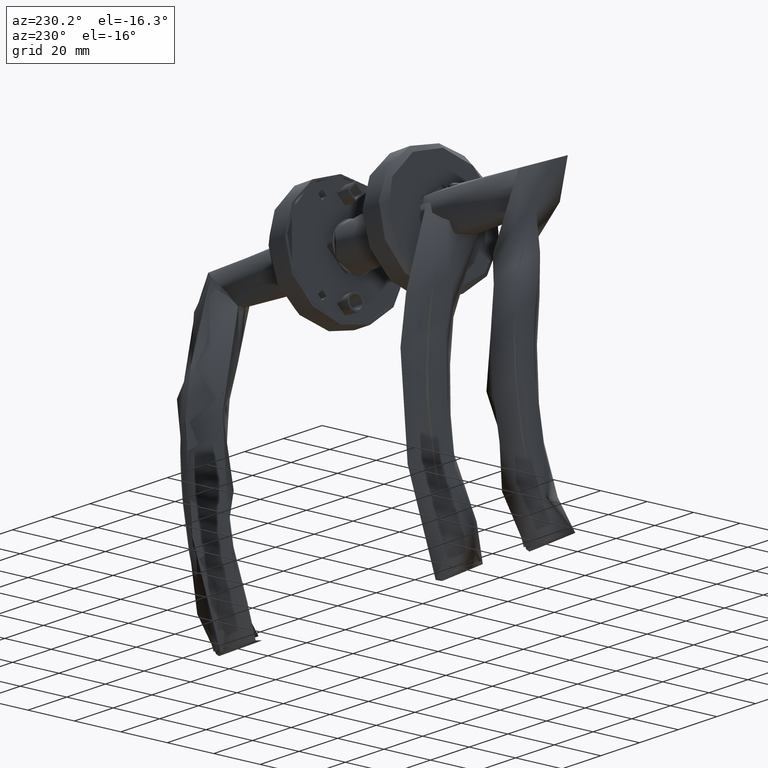
[diagram: clean part render]
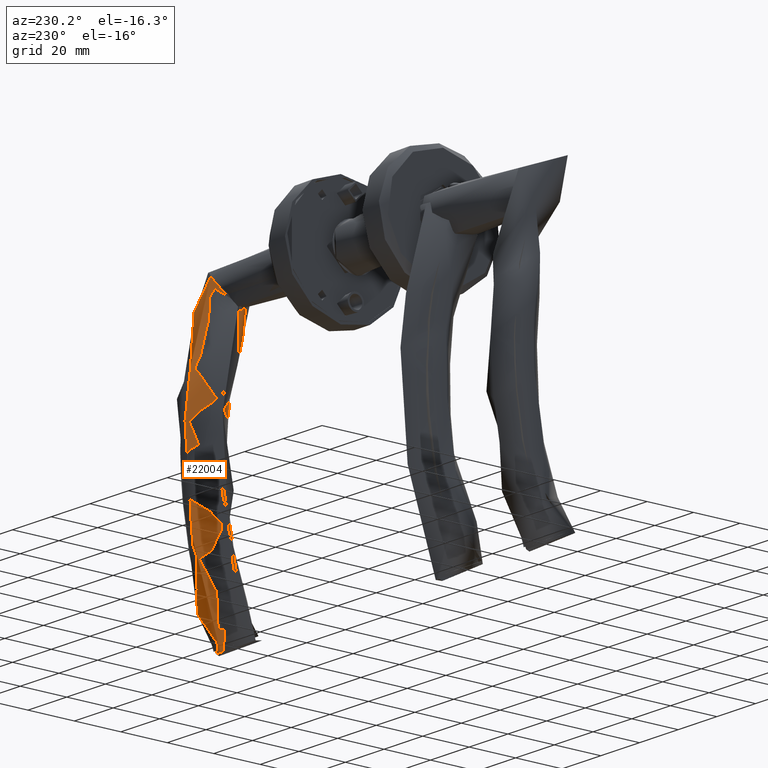
[diagram: same view with one face highlighted and labeled with its STEP entity id]
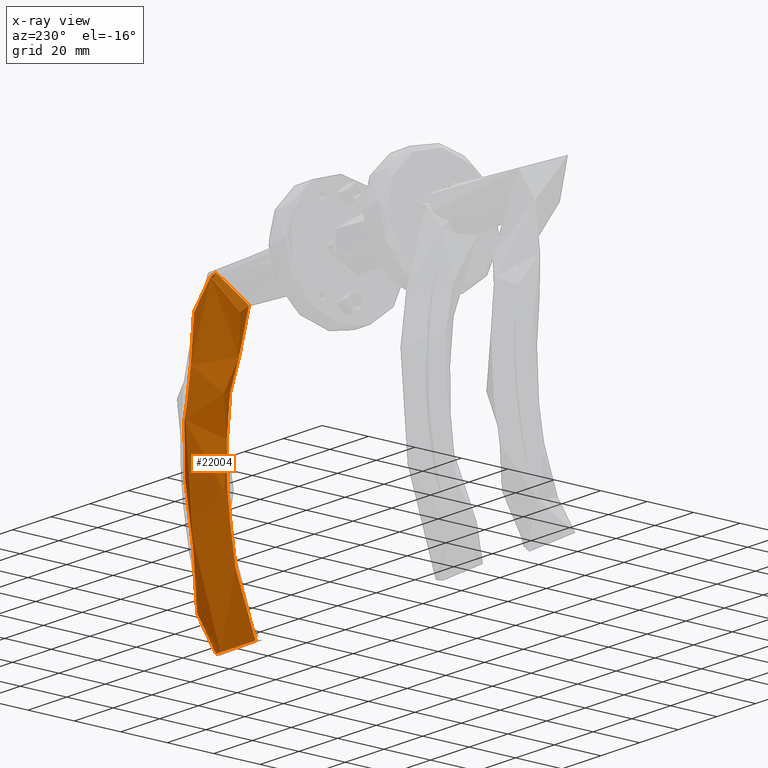
[diagram: x-ray of the same camera — body ghosted, the highlighted face saturated]
A machine part, auxiliary view. The second image highlights one B-rep face of the part: STEP entity #22004.
The next image is the same camera in x-ray: the body ghosted, the highlighted face saturated — about 0% of this face is hidden behind the body in this view.
In plain terms, the highlighted face is a freeform B-spline surface patch.
Its self-contained STEP definition (entity closure, byte-faithful):
#50 = CARTESIAN_POINT ( 'NONE',  ( -16.22071942260672400, 8.234556544962071500, -56.71931508122803900 ) ) ;
#336 = CARTESIAN_POINT ( 'NONE',  ( -16.79419942768651500, 7.850796684820851500, -56.40686338715776300 ) ) ;
#864 = CARTESIAN_POINT ( 'NONE',  ( -13.42798472969003900, -9.103720492256769600, -65.77151898276601100 ) ) ;
#1367 = CARTESIAN_POINT ( 'NONE',  ( -7.617751968627470800, 9.553941256338704900, -63.13283780220581300 ) ) ;
#1399 = CARTESIAN_POINT ( 'NONE',  ( -128.6743231049544500, -11.49598416964240100, -69.55529002845783300 ) ) ;
#1688 = CARTESIAN_POINT ( 'NONE',  ( -131.7640808220501200, -4.598706806350189200, -74.94325840087366000 ) ) ;
#1976 = CARTESIAN_POINT ( 'NONE',  ( -128.4774460883169500, -11.93291999693389400, -68.35405575468219300 ) ) ;
#2256 = CARTESIAN_POINT ( 'NONE',  ( -134.9954863378510200, 2.472336319264605700, -72.58948050646546300 ) ) ;
#2533 = CARTESIAN_POINT ( 'NONE',  ( -133.9716314361016900, 0.2578851161913269200, -74.12972600733131400 ) ) ;
#2738 = CARTESIAN_POINT ( 'NONE',  ( -132.4985005095418600, 17.81445368964994800, -75.00235294117646800 ) ) ;
#3015 = CARTESIAN_POINT ( 'NONE',  ( -133.2421038062283900, -3.759944636678175900, -55.40235294117648800 ) ) ;
#3863 = CARTESIAN_POINT ( 'NONE',  ( -4.735051580258198300, 16.81355099869568900, -75.00235294117648300 ) ) ;
#3886 = ORIENTED_EDGE ( 'NONE', *, *, #18175, .F. ) ;
#3957 = CARTESIAN_POINT ( 'NONE',  ( -135.6283203479031600, 3.704800102703756300, -59.19453161038819600 ) ) ;
#4033 = CARTESIAN_POINT ( 'NONE',  ( -20.05172098690205100, 3.441292553810101100, -55.45171509219385100 ) ) ;
#4412 = CARTESIAN_POINT ( 'NONE',  ( -2.048817750090004400, 5.309291301753273000, -70.59354467984856300 ) ) ;
#4694 = CARTESIAN_POINT ( 'NONE',  ( -0.9044976660930377200, 1.639342160825658900, -73.41711819498532100 ) ) ;
#4699 = CARTESIAN_POINT ( 'NONE',  ( -82.12983448072478200, 31.13336936922119900, -55.40235294117632500 ) ) ;
#4994 = CARTESIAN_POINT ( 'NONE',  ( -0.8592531995585207500, 0.9321315283208147000, -73.79106484013168200 ) ) ;
#5287 = CARTESIAN_POINT ( 'NONE',  ( -3.938468690096986100, -6.801227872048196200, -74.31845336490920300 ) ) ;
#6761 = CARTESIAN_POINT ( 'NONE',  ( -17.62111982056760700, 7.180037014613192000, -55.99843802810929100 ) ) ;
#8089 = CARTESIAN_POINT ( 'NONE',  ( -128.3881004109339300, -12.09070653798450400, -62.63475604416475300 ) ) ;
#8378 = CARTESIAN_POINT ( 'NONE',  ( -135.7212663703287800, 4.017109029182488000, -70.66344605710600000 ) ) ;
#8673 = CARTESIAN_POINT ( 'NONE',  ( -128.5224843459809600, -11.83321044039563000, -68.66104074409599900 ) ) ;
#8970 = CARTESIAN_POINT ( 'NONE',  ( -129.8243343892858900, -8.841579039338970600, -57.39732701362308400 ) ) ;
#9266 = CARTESIAN_POINT ( 'NONE',  ( -133.3453579272024000, -1.110008241925102300, -74.68332276093622100 ) ) ;
#9457 = CARTESIAN_POINT ( 'NONE',  ( -33.99929133140997100, 30.42080222750221800, -75.00235294117612700 ) ) ;
#9920 = CARTESIAN_POINT ( 'NONE',  ( -20.47579451412535100, 1.241879158761763900, -55.95142486578770000 ) ) ;
#10295 = CARTESIAN_POINT ( 'NONE',  ( -12.98929798183592000, -9.265618871486324800, -66.29222607443010400 ) ) ;
#10299 = CARTESIAN_POINT ( 'NONE',  ( -101.4842428337175300, -11.25170264496669700, -75.00235294117635500 ) ) ;
#10577 = CARTESIAN_POINT ( 'NONE',  ( -109.8343842349904400, 26.75985017460723400, -75.00235294117646800 ) ) ;
#10668 = CARTESIAN_POINT ( 'NONE',  ( -136.2152770950185100, 4.969424342609026500, -61.72549823149250200 ) ) ;
#10758 = CARTESIAN_POINT ( 'NONE',  ( -20.08784866817502000, -2.145874518139417200, -57.59081847345371600 ) ) ;
#11149 = CARTESIAN_POINT ( 'NONE',  ( -3.028451348241437000, 6.747217176886635100, -68.97131119212360800 ) ) ;
#11444 = CARTESIAN_POINT ( 'NONE',  ( -1.915171523268339700, -3.927464100632918100, -75.00964802363262200 ) ) ;
#11735 = CARTESIAN_POINT ( 'NONE',  ( -5.119639690218410700, 8.547444420968936600, -66.08681799436519100 ) ) ;
#12039 = CARTESIAN_POINT ( 'NONE',  ( -1.122117694619100000, -1.678837787156855800, -74.74932274921516800 ) ) ;
#12045 = CARTESIAN_POINT ( 'NONE',  ( -109.6647287839631300, 5.839933969572142800, -55.40235294117648100 ) ) ;
#13538 = CARTESIAN_POINT ( 'NONE',  ( -19.06345419602423200, 5.492692037669700200, -55.47420905748829500 ) ) ;
#14326 = VERTEX_POINT ( 'NONE', #1367 ) ;
#14882 = CARTESIAN_POINT ( 'NONE',  ( -128.4634784429618700, -11.91576714853955500, -62.02240624930206500 ) ) ;
#15182 = CARTESIAN_POINT ( 'NONE',  ( -129.2444741785679400, -10.13979406339083400, -58.71156491343961600 ) ) ;
#15474 = CARTESIAN_POINT ( 'NONE',  ( -132.0264922088650200, -4.017222857011407900, -75.00370804705190200 ) ) ;
#15781 = CARTESIAN_POINT ( 'NONE',  ( -129.0890416444910900, -10.56933653190583300, -71.18682825621662900 ) ) ;
#16055 = CARTESIAN_POINT ( 'NONE',  ( -136.0593919882591900, 4.725112415010879200, -69.25901297678666400 ) ) ;
#16536 = CARTESIAN_POINT ( 'NONE',  ( -80.32224485699082100, -8.176454778600296800, -55.40235294117674400 ) ) ;
#16911 = CARTESIAN_POINT ( 'NONE',  ( -134.8506391608407300, 2.046248783081453700, -57.40208389304918100 ) ) ;
#17277 = CARTESIAN_POINT ( 'NONE',  ( -18.89328097642261300, -4.666849316549724200, -59.56225731191602100 ) ) ;
#17842 = CARTESIAN_POINT ( 'NONE',  ( -20.47889096722402900, -0.1726168147073938200, -56.49797674121334300 ) ) ;
#17939 = CARTESIAN_POINT ( 'NONE',  ( -3.176389477336746500, -5.940176044431171800, -74.68440737543848200 ) ) ;
#18175 = EDGE_CURVE ( 'NONE', #14326, #49018, #22716, .T. ) ;
#18225 = CARTESIAN_POINT ( 'NONE',  ( -3.804822952021525800, 7.555168673674180500, -67.83788691446267200 ) ) ;
#18524 = CARTESIAN_POINT ( 'NONE',  ( -2.288981869149924600, -4.634064451229305900, -74.96560506584781100 ) ) ;
#18814 = CARTESIAN_POINT ( 'NONE',  ( -1.296645043736012000, 3.611534631761692500, -72.11563046161757000 ) ) ;
#18820 = CARTESIAN_POINT ( 'NONE',  ( -23.22749961979524600, 22.86034652784522000, -55.40235294117650300 ) ) ;
#19120 = CARTESIAN_POINT ( 'NONE',  ( -7.354237453421859500, 9.489354097761650000, -63.42765605789998800 ) ) ;
#20320 = CARTESIAN_POINT ( 'NONE',  ( -15.33063645719089900, 8.724700936545646700, -57.24227361397603200 ) ) ;
#21675 = CARTESIAN_POINT ( 'NONE',  ( -128.7914884966313300, -11.16498206759597700, -60.28098870768052100 ) ) ;
#21967 = CARTESIAN_POINT ( 'NONE',  ( -129.6164956852199200, -9.305517835078369200, -57.80921056635153800 ) ) ;
#22004 = ADVANCED_FACE ( 'NONE', ( #34050, #78093 ), #60938, .F. ) ;
#22243 = CARTESIAN_POINT ( 'NONE',  ( -134.4490024273230500, 1.294148140485600800, -73.52363009002301900 ) ) ;
#22542 = CARTESIAN_POINT ( 'NONE',  ( -132.5854345574402900, -2.797495497615442700, -55.40136624985294100 ) ) ;
#22716 = B_SPLINE_CURVE_WITH_KNOTS ( 'NONE', 3,
 ( #39981, #53439, #47276, #67249, #40266, #33830, #33544, #27076, #80421, #73987, #20320, #60507, #50, #336, #46991, #6761, #53730, #80705, #40567, #13538, #57465, #63685, #50693, #4033, #38110, #37256, #44828, #9920, #78269, #17842, #64215, #10758, #37822, #43969, #84729, #44528, #17277, #24619, #64504, #84144, #23500, #24323, #70945, #56910 ),
 .UNSPECIFIED., .F., .F.,
 ( 4, 2, 2, 2, 2, 2, 2, 2, 2, 2, 2, 2, 2, 2, 2, 2, 2, 2, 2, 2, 2, 4 ),
 ( -2.094127679499287600E-005, 0.002268244175610261600, 0.004557429628015515500, 0.006846615080420769300, 0.009135800532826024100, 0.01028039325902865000, 0.01142498598523127400, 0.01256957871143389600, 0.01371417143763652000, 0.01485876416383914200, 0.01600335689004176600, 0.01714794961624438800, 0.01829254234244701000, 0.01943713506864963200, 0.02058172779485225500, 0.02287091324725751300, 0.02516009869966276400, 0.02630469142586540000, 0.02744928415206802600, 0.02973846960447327700, 0.03202765505687853200, 0.03660602596168904100 ),
 .UNSPECIFIED. ) ;
#22838 = CARTESIAN_POINT ( 'NONE',  ( -132.4225727516298200, -3.141611520689083600, -75.00164117434826500 ) ) ;
#23035 = CARTESIAN_POINT ( 'NONE',  ( -20.60025059954466200, -16.44265629515970400, -75.00235294117648300 ) ) ;
#23315 = CARTESIAN_POINT ( 'NONE',  ( -30.79152216849348300, 7.359433351636871700, -55.40235294117650300 ) ) ;
#23500 = CARTESIAN_POINT ( 'NONE',  ( -16.79778359064243900, -7.082332482371572100, -62.22796482466574000 ) ) ;
#23690 = CARTESIAN_POINT ( 'NONE',  ( -134.3968202594622000, 1.079514517564542600, -56.67821336361422600 ) ) ;
#23876 = CARTESIAN_POINT ( 'NONE',  ( -40.53682362918795000, -10.20041487859616300, -75.00235294117692300 ) ) ;
#24241 = CARTESIAN_POINT ( 'NONE',  ( -135.0636900413138300, 2.500157776951772900, -57.80952439052224200 ) ) ;
#24323 = CARTESIAN_POINT ( 'NONE',  ( -15.45538475231386500, -8.128540072977580500, -63.73559103894857700 ) ) ;
#24430 = CARTESIAN_POINT ( 'NONE',  ( -12.41325902088857600, -9.434547332067957400, -66.95573374601522700 ) ) ;
#24619 = CARTESIAN_POINT ( 'NONE',  ( -18.39125158037293400, -5.402400699559446900, -60.26326300112616300 ) ) ;
#24719 = CARTESIAN_POINT ( 'NONE',  ( -7.288841593424190400, 9.471786022058847000, -63.50142642018275300 ) ) ;
#25015 = CARTESIAN_POINT ( 'NONE',  ( -10.81431371715268400, -9.676027681564885800, -68.69167044468979100 ) ) ;
#25308 = CARTESIAN_POINT ( 'NONE',  ( -18.67764705882351400, 4.150588235294111300, -55.40235294117647400 ) ) ;
#25602 = CARTESIAN_POINT ( 'NONE',  ( -1.041583594760357600, -1.297965377467117800, -74.65127649162231200 ) ) ;
#26972 = CARTESIAN_POINT ( 'NONE',  ( -136.4580231653124500, 5.531964618879897900, -65.85156883011551100 ) ) ;
#27076 = CARTESIAN_POINT ( 'NONE',  ( -13.51366660752965200, 9.427665132654791300, -58.41976106357006400 ) ) ;
#28425 = CARTESIAN_POINT ( 'NONE',  ( -130.9915195138172200, -6.316064360416846500, -74.49392231153983300 ) ) ;
#28730 = CARTESIAN_POINT ( 'NONE',  ( -128.6679174143121400, -11.44672651348436800, -60.84813111285014000 ) ) ;
#29018 = CARTESIAN_POINT ( 'NONE',  ( -131.7743747156199600, -4.553416816931154200, -55.48247696915384400 ) ) ;
#29317 = CARTESIAN_POINT ( 'NONE',  ( -134.3332976975022500, 1.043584029266420000, -73.68805727273348800 ) ) ;
#29597 = CARTESIAN_POINT ( 'NONE',  ( -130.5070024258340000, -7.396586020448732600, -74.00765324406272300 ) ) ;
#29791 = CARTESIAN_POINT ( 'NONE',  ( -141.5432802768165500, 13.99534948096889100, -75.00235294117646800 ) ) ;
#30347 = CARTESIAN_POINT ( 'NONE',  ( -13.30351410739806400, -9.152400277763181400, -65.92053089473101600 ) ) ;
#30350 = CARTESIAN_POINT ( 'NONE',  ( -81.22603966885775200, 11.47845729531043800, -55.40235294117648800 ) ) ;
#30628 = CARTESIAN_POINT ( 'NONE',  ( -37.26805748029897100, 10.11019367445302200, -75.00235294117654000 ) ) ;
#30912 = CARTESIAN_POINT ( 'NONE',  ( -52.36072137001838200, -9.477870085988042700, -55.40235294117697900 ) ) ;
#31183 = CARTESIAN_POINT ( 'NONE',  ( -0.8873599002691384700, -0.1614795229890467800, -74.27334678970521500 ) ) ;
#31486 = CARTESIAN_POINT ( 'NONE',  ( -0.9236457563189712800, -0.5357580410303685000, -74.41219287279207600 ) ) ;
#31491 = CARTESIAN_POINT ( 'NONE',  ( -124.1973240389536400, 0.05915957200288215300, -55.40235294117648800 ) ) ;
#31765 = CARTESIAN_POINT ( 'NONE',  ( -5.312438232259408400, -7.968190928313145300, -73.47456307434127600 ) ) ;
#32060 = CARTESIAN_POINT ( 'NONE',  ( -4.475418490566576100, -7.308033367856560300, -74.01287531567292900 ) ) ;
#32352 = CARTESIAN_POINT ( 'NONE',  ( -6.475970247085046900, -8.673522874889801700, -72.62532363424635700 ) ) ;
#33544 = CARTESIAN_POINT ( 'NONE',  ( -12.29863689083003200, 9.701012069279610000, -59.28436830675816800 ) ) ;
#33725 = CARTESIAN_POINT ( 'NONE',  ( -136.4251781493592800, 5.470588367620084800, -66.49988213727932900 ) ) ;
#33830 = CARTESIAN_POINT ( 'NONE',  ( -11.68739470884244200, 9.786938031774875300, -59.74041900410846000 ) ) ;
#34050 = FACE_OUTER_BOUND ( 'NONE', #48372, .T. ) ;
#34880 = CARTESIAN_POINT ( 'NONE',  ( -130.1603594476852100, -8.171121831874167200, -73.53931979806652900 ) ) ;
#35167 = CARTESIAN_POINT ( 'NONE',  ( -133.5998010589542000, -0.5528850470715011000, -74.49754563153250300 ) ) ;
#35466 = CARTESIAN_POINT ( 'NONE',  ( -130.9947943991481300, -6.255533115764873000, -55.91565517017519900 ) ) ;
#35755 = CARTESIAN_POINT ( 'NONE',  ( -132.0418307955016500, -3.972891273257321400, -55.41921667121523900 ) ) ;
#36043 = CARTESIAN_POINT ( 'NONE',  ( -128.3686364680775700, -12.17231143701837900, -67.42676529456156200 ) ) ;
#36333 = CARTESIAN_POINT ( 'NONE',  ( -135.4548480650665300, 3.334211265321142600, -58.70077990217423300 ) ) ;
#37071 = CARTESIAN_POINT ( 'NONE',  ( -13.17812347014881900, -9.198676061706416700, -66.06936572657357900 ) ) ;
#37074 = CARTESIAN_POINT ( 'NONE',  ( -71.58717759712558900, -7.893098773327485800, -75.00235294117675300 ) ) ;
#37256 = CARTESIAN_POINT ( 'NONE',  ( -20.33622057339118100, 2.340127554687625900, -55.64179062934468300 ) ) ;
#37358 = CARTESIAN_POINT ( 'NONE',  ( -133.2421038062283900, -3.759944636678165700, -75.00235294117649700 ) ) ;
#37637 = CARTESIAN_POINT ( 'NONE',  ( -10.37647058823527700, 21.90588235294116600, -55.40235294117648800 ) ) ;
#37822 = CARTESIAN_POINT ( 'NONE',  ( -19.87846028066143200, -2.748750120545255800, -57.99952328901800800 ) ) ;
#37917 = CARTESIAN_POINT ( 'NONE',  ( -9.690062793609056900, -9.643874345428660200, -69.81788116714834300 ) ) ;
#38110 = CARTESIAN_POINT ( 'NONE',  ( -20.16344700829050000, 3.073979609961338300, -55.50113139421611700 ) ) ;
#38507 = CARTESIAN_POINT ( 'NONE',  ( -113.6841341405486800, 24.46425776840608900, -55.40235294117650300 ) ) ;
#39087 = CARTESIAN_POINT ( 'NONE',  ( -7.617751968627470800, 9.553941256338704900, -63.13283780220581300 ) ) ;
#39981 = CARTESIAN_POINT ( 'NONE',  ( -7.617751968627470800, 9.553941256338704900, -63.13283780220581300 ) ) ;
#40266 = CARTESIAN_POINT ( 'NONE',  ( -10.49074753821444100, 9.866689400650969300, -60.67198960523504800 ) ) ;
#40379 = ORIENTED_EDGE ( 'NONE', *, *, #64328, .F. ) ;
#40567 = CARTESIAN_POINT ( 'NONE',  ( -18.62453962510394900, 6.103021549955096600, -55.59800713175921100 ) ) ;
#41478 = VERTEX_POINT ( 'NONE', #75831 ) ;
#41622 = CARTESIAN_POINT ( 'NONE',  ( -128.7978517836149300, -11.22037917045958500, -70.11986096809404500 ) ) ;
#41908 = CARTESIAN_POINT ( 'NONE',  ( -132.8208215696205900, -2.263165762376036400, -74.92094183274912200 ) ) ;
#42108 = B_SPLINE_CURVE_WITH_KNOTS ( 'NONE', 3,
 ( #84534, #76957, #30347, #37071, #10295, #83959, #24430, #57287, #65474, #25015, #37917, #78079, #85701, #45508, #32352, #64891, #79231, #31765, #84823, #32060, #5287, #85111, #17939, #51652, #59009, #18524, #11444, #52239, #65187, #78938, #12039, #25602, #31486, #31183, #44926, #4994, #4694, #71615, #58425, #18814, #44627, #59313, #4412, #72211, #51362, #11149, #18225, #65777, #11735, #51948, #72510, #78664, #58125, #85406, #24719, #19120, #78371, #85994, #39087 ),
 .UNSPECIFIED., .F., .F.,
 ( 4, 2, 1, 2, 2, 2, 2, 2, 2, 2, 2, 2, 2, 2, 2, 2, 2, 2, 2, 2, 2, 2, 2, 2, 2, 2, 2, 2, 2, 4 ),
 ( -1.967884772117012000E-005, 0.0002768400870369478900, 0.0005733590217950659300, 0.001166396891311271400, 0.002352472630343678700, 0.004724624108408528900, 0.007096775586473378200, 0.009468927064538227400, 0.01065500280357065300, 0.01184107854260307800, 0.01302715428163550900, 0.01421323002066794000, 0.01539930575970036900, 0.01658538149873279800, 0.01777145723776522900, 0.01895753297679765600, 0.02014360871583008700, 0.02132968445486251400, 0.02251576019389494400, 0.02370183593292737200, 0.02607398741099221600, 0.02726006315002461500, 0.02844613888905702200, 0.03081829036712180700, 0.03319044184518658800, 0.03556259332325137400, 0.03674866906228375900, 0.03734170693179994500, 0.03763822586655802400, 0.03793474480131609600 ),
 .UNSPECIFIED. ) ;
#42196 = CARTESIAN_POINT ( 'NONE',  ( -131.3729401401833700, -5.467405832281504500, -74.75680528445884900 ) ) ;
#42474 = CARTESIAN_POINT ( 'NONE',  ( -130.4968508155415600, -7.350403536846201300, -56.39177675625482800 ) ) ;
#42559 = B_SPLINE_CURVE_WITH_KNOTS ( 'NONE', 3,
 ( #68010, #26972, #33725, #74460, #80591, #16055, #49200, #55665, #8378, #69729, #82038, #42777, #2256, #56247, #22243, #29317, #55950, #2533, #35167, #9266, #63020, #41908, #49490, #22838, #15474, #1688, #42196, #62432, #28425, #68570, #29597, #75895, #34880, #68861, #62136, #81746, #15781, #41622, #1399, #8673, #1976, #48324, #36043, #75319, #82917, #55083, #69154, #8089, #14882, #61846, #28730, #21675, #48611, #55372, #15182, #21967, #8970, #82625, #42474, #75601, #35466, #82326, #48907, #29018, #35755, #62733, #22542, #69445, #76190, #70579, #43883, #63304, #57100, #23690, #50893, #16911, #24241, #43328, #36333, #3957, #70009, #77056, #10668, #84341, #83778, #50055, #57660, #71148, #77325 ),
 .UNSPECIFIED., .T., .F.,
 ( 4, 2, 2, 2, 1, 2, 2, 2, 2, 2, 2, 2, 2, 2, 2, 1, 2, 2, 2, 2, 2, 2, 2, 2, 2, 2, 2, 2, 2, 2, 2, 2, 1, 2, 2, 2, 2, 2, 2, 2, 2, 2, 2, 2, 2, 4 ),
 ( 0.0000000000000000000, 0.001945804773954263700, 0.003891609547908527400, 0.004864511934885639600, 0.005837414321862753400, 0.006810316708839865600, 0.007783219095816978600, 0.009729023869771204500, 0.01070192625674833000, 0.01167482864372545500, 0.01362063341767968800, 0.01459353580465682200, 0.01556643819163395400, 0.01751224296558822500, 0.01848514535256534600, 0.01945804773954246500, 0.02043095012651959000, 0.02140385251349671100, 0.02334965728745095100, 0.02529546206140519100, 0.02724126683535942800, 0.02821416922233654200, 0.02918707160931365700, 0.03113287638326787300, 0.03307868115722209500, 0.03502448593117631800, 0.03599738831815344600, 0.03697029070513056800, 0.03891609547908480400, 0.04086190025303904100, 0.04280770502699327700, 0.04378060741397037800, 0.04475350980094748600, 0.04572641218792458700, 0.04669931457490169400, 0.04864511934885586100, 0.04961802173583294800, 0.05059092412281002800, 0.05253672889676419500, 0.05350963128374126900, 0.05448253367071832800, 0.05642833844467243200, 0.05837414321862653000, 0.05934704560560356800, 0.06031994799258062800, 0.06226575276653469700 ),
 .UNSPECIFIED. ) ;
#42777 = CARTESIAN_POINT ( 'NONE',  ( -135.2883870743022200, 3.098310693244734200, -71.90737149017010700 ) ) ;
#42960 = CARTESIAN_POINT ( 'NONE',  ( -105.6593135343539800, 7.754073764820272900, -75.00235294117642600 ) ) ;
#43236 = CARTESIAN_POINT ( 'NONE',  ( -124.1973240389536400, 0.05915957200288215300, -55.40235294117648800 ) ) ;
#43328 = CARTESIAN_POINT ( 'NONE',  ( -135.1651876055509500, 2.716462290354887600, -58.02426461061018200 ) ) ;
#43566 = EDGE_CURVE ( 'NONE', #41478, #41478, #42559, .T. ) ;
#43883 = CARTESIAN_POINT ( 'NONE',  ( -133.6473508041418700, -0.5197547734436096500, -55.90713021790966100 ) ) ;
#43969 = CARTESIAN_POINT ( 'NONE',  ( -19.49204143554319300, -3.605467132292242500, -58.65347834784903800 ) ) ;
#44072 = CARTESIAN_POINT ( 'NONE',  ( 7.378823529411770100, 13.60470588235293300, -75.00235294117646800 ) ) ;
#44528 = CARTESIAN_POINT ( 'NONE',  ( -19.05217256997789800, -4.412240259233671600, -59.33175279508991900 ) ) ;
#44627 = CARTESIAN_POINT ( 'NONE',  ( -1.642281651830598900, 4.487756007265757000, -71.37133556075200100 ) ) ;
#44828 = CARTESIAN_POINT ( 'NONE',  ( -20.39838515249368500, 1.969438194566526900, -55.73371470422785700 ) ) ;
#44926 = CARTESIAN_POINT ( 'NONE',  ( -0.8551879763784695500, 0.5722059674677288900, -73.96288005026110600 ) ) ;
#45508 = CARTESIAN_POINT ( 'NONE',  ( -7.352318377946028600, -9.086630541579706800, -71.92979055711018100 ) ) ;
#45515 = CARTESIAN_POINT ( 'NONE',  ( -45.42911893101329900, 32.16332161612889700, -55.40235294117614700 ) ) ;
#46991 = CARTESIAN_POINT ( 'NONE',  ( -17.07469131999551600, 7.641077580785737000, -56.26193196699770700 ) ) ;
#47276 = CARTESIAN_POINT ( 'NONE',  ( -8.745029185720881100, 9.768866223306211800, -62.12582440505150300 ) ) ;
#48324 = CARTESIAN_POINT ( 'NONE',  ( -128.4006764214911400, -12.10212682635435800, -67.73770067912335000 ) ) ;
#48372 = EDGE_LOOP ( 'NONE', ( #56302 ) ) ;
#48611 = CARTESIAN_POINT ( 'NONE',  ( -128.8596898924642500, -11.00994675702629500, -60.00263134402236200 ) ) ;
#48907 = CARTESIAN_POINT ( 'NONE',  ( -131.5097854881665000, -5.128994120324203500, -55.57627956507295200 ) ) ;
#49018 = VERTEX_POINT ( 'NONE', #864 ) ;
#49200 = CARTESIAN_POINT ( 'NONE',  ( -135.9979606919344500, 4.597228746098323900, -69.55206928878855900 ) ) ;
#49490 = CARTESIAN_POINT ( 'NONE',  ( -132.5550168207088300, -2.849174369399358300, -74.98538249785804100 ) ) ;
#49961 = CARTESIAN_POINT ( 'NONE',  ( -26.97882352941174500, -13.60470588235294400, -55.40235294117648800 ) ) ;
#50055 = CARTESIAN_POINT ( 'NONE',  ( -136.3695036761701500, 5.309283643531565600, -62.96095567793565100 ) ) ;
#50515 = CARTESIAN_POINT ( 'NONE',  ( -124.9409273356401700, -21.51523875432524600, -55.40235294117648100 ) ) ;
#50693 = CARTESIAN_POINT ( 'NONE',  ( -19.78370402295248500, 4.150976753252001200, -55.39914809158872800 ) ) ;
#50796 = CARTESIAN_POINT ( 'NONE',  ( -73.21433465597752400, 31.35265467722668100, -75.00235294117632600 ) ) ;
#50893 = CARTESIAN_POINT ( 'NONE',  ( -134.7390865263643600, 1.808645585222628000, -57.20968278528343400 ) ) ;
#51362 = CARTESIAN_POINT ( 'NONE',  ( -2.673828232454244600, 6.301938042149312300, -69.52364090644705600 ) ) ;
#51366 = CARTESIAN_POINT ( 'NONE',  ( -133.2421038062283900, -3.759944636678175900, -55.40235294117648800 ) ) ;
#51652 = CARTESIAN_POINT ( 'NONE',  ( -2.940608043265686700, -5.631652776484147100, -74.77749051258756200 ) ) ;
#51948 = CARTESIAN_POINT ( 'NONE',  ( -5.592422071687797900, 8.817514014042146200, -65.49506365532498400 ) ) ;
#52239 = CARTESIAN_POINT ( 'NONE',  ( -1.748403016303250700, -3.565210022075814500, -75.00698548673854300 ) ) ;
#53386 = EDGE_LOOP ( 'NONE', ( #3886, #40379 ) ) ;
#53439 = CARTESIAN_POINT ( 'NONE',  ( -8.174222907585933800, 9.681046665350153900, -62.62643105862367300 ) ) ;
#53730 = CARTESIAN_POINT ( 'NONE',  ( -17.88821961411444100, 6.927050673504217200, -55.87955977298509700 ) ) ;
#55083 = CARTESIAN_POINT ( 'NONE',  ( -128.2618457729228100, -12.39135333051134000, -64.54944044680765100 ) ) ;
#55372 = CARTESIAN_POINT ( 'NONE',  ( -129.0785307757186000, -10.51400177203725800, -59.20333522958883800 ) ) ;
#55665 = CARTESIAN_POINT ( 'NONE',  ( -135.8649709354718900, 4.319003683528001700, -70.11675020680270600 ) ) ;
#55950 = CARTESIAN_POINT ( 'NONE',  ( -134.0945719732313300, 0.5253695180715114400, -73.99127826828642200 ) ) ;
#56247 = CARTESIAN_POINT ( 'NONE',  ( -134.7854000341137400, 2.020883562259624200, -72.99288991681265800 ) ) ;
#56302 = ORIENTED_EDGE ( 'NONE', *, *, #43566, .F. ) ;
#56732 = CARTESIAN_POINT ( 'NONE',  ( -38.35554471719170500, -8.141479824571472800, -55.40235294117650300 ) ) ;
#56910 = CARTESIAN_POINT ( 'NONE',  ( -13.42798472969003900, -9.103720492256769600, -65.77151898276601100 ) ) ;
#57100 = CARTESIAN_POINT ( 'NONE',  ( -134.1562358122910400, 0.5668530166749521400, -56.37973348295654600 ) ) ;
#57287 = CARTESIAN_POINT ( 'NONE',  ( -12.15268068370960800, -9.494431132601112800, -67.24820382764058000 ) ) ;
#57290 = CARTESIAN_POINT ( 'NONE',  ( -0.9223529411764627200, -4.150588235294121000, -75.00235294117646800 ) ) ;
#57465 = CARTESIAN_POINT ( 'NONE',  ( -19.26791256995984700, 5.165684144217914700, -55.43244761240167400 ) ) ;
#57660 = CARTESIAN_POINT ( 'NONE',  ( -136.4447663090591600, 5.479698311681150200, -63.91165829534951800 ) ) ;
#58125 = CARTESIAN_POINT ( 'NONE',  ( -6.964584786007034000, 9.376804827640807400, -63.87032851768173500 ) ) ;
#58425 = CARTESIAN_POINT ( 'NONE',  ( -1.118454743111644300, 2.989451028977061500, -72.57902091413826900 ) ) ;
#59009 = CARTESIAN_POINT ( 'NONE',  ( -2.497530560115212200, -4.980027835361961600, -74.91813369148438500 ) ) ;
#59014 = CARTESIAN_POINT ( 'NONE',  ( -48.89492015051585800, 11.34272576507043300, -55.40235294117656700 ) ) ;
#59313 = CARTESIAN_POINT ( 'NONE',  ( -1.771172627869122400, 4.770821786023298600, -71.11420028607227600 ) ) ;
#60507 = CARTESIAN_POINT ( 'NONE',  ( -15.92772149221880600, 8.408566256959254300, -56.88685697440251900 ) ) ;
#60938 =( BOUNDED_SURFACE ( )  B_SPLINE_SURFACE ( 3, 3, ( 
 ( #71048, #23315, #63498, #30350, #63780, #43236, #3015 ),
 ( #49961, #56732, #30912, #16536, #64055, #83685, #50515 ),
 ( #77234, #23035, #23876, #37074, #10299, #64326, #69919 ),
 ( #57290, #70769, #30628, #77512, #42960, #70211, #37358 ),
 ( #44072, #3863, #9457, #50796, #10577, #2738, #29791 ),
 ( #37637, #18820, #45515, #4699, #38507, #65481, #71619 ),
 ( #25308, #85115, #59014, #78670, #12045, #31491, #51366 ) ),
 .UNSPECIFIED., .T., .F., .T. ) 
 B_SPLINE_SURFACE_WITH_KNOTS ( ( 4, 3, 4 ),
 ( 4, 1, 1, 1, 4 ),
 ( 0.0000000000000000000, 0.5000000000000000000, 1.000000000000000000 ),
 ( 0.0000000000000000000, 0.2731959028624648100, 0.5593043811875317900, 0.7818467517848726200, 1.000000000000000000 ),
 .UNSPECIFIED. ) 
 GEOMETRIC_REPRESENTATION_ITEM ( )  RATIONAL_B_SPLINE_SURFACE ( (
 ( 1.000000000000000000, 1.000000000000000000, 1.000000000000000000, 1.000000000000000000, 0.9999999999999997800, 1.000000000000000000, 1.000000000000000000),
 ( 0.3333333333333333700, 0.3333333333333333700, 0.3333333333333334300, 0.3333333333333332600, 0.3333333333333334300, 0.3333333333333333700, 0.3333333333333333700),
 ( 0.3333333333333333700, 0.3333333333333333700, 0.3333333333333334300, 0.3333333333333332600, 0.3333333333333334300, 0.3333333333333333700, 0.3333333333333333700),
 ( 1.000000000000000000, 1.000000000000000000, 1.000000000000000000, 1.000000000000000000, 0.9999999999999997800, 1.000000000000000000, 1.000000000000000000),
 ( 0.3333333333333333700, 0.3333333333333333700, 0.3333333333333334300, 0.3333333333333332600, 0.3333333333333334300, 0.3333333333333333700, 0.3333333333333333700),
 ( 0.3333333333333333700, 0.3333333333333333700, 0.3333333333333334300, 0.3333333333333332600, 0.3333333333333334300, 0.3333333333333333700, 0.3333333333333333700),
 ( 1.000000000000000000, 1.000000000000000000, 1.000000000000000000, 1.000000000000000000, 0.9999999999999997800, 1.000000000000000000, 1.000000000000000000) ) ) 
 REPRESENTATION_ITEM ( '' )  SURFACE ( )  );
#61846 = CARTESIAN_POINT ( 'NONE',  ( -128.6123042230537700, -11.57398236638216100, -61.13747007218839300 ) ) ;
#62136 = CARTESIAN_POINT ( 'NONE',  ( -129.6291829404594000, -9.359768963609433000, -72.59778663687500000 ) ) ;
#62432 = CARTESIAN_POINT ( 'NONE',  ( -131.2437233340092700, -5.754718192585500000, -74.67876155491691700 ) ) ;
#62733 = CARTESIAN_POINT ( 'NONE',  ( -132.1775168412459000, -3.679020985629044100, -55.40286408004801900 ) ) ;
#63020 = CARTESIAN_POINT ( 'NONE',  ( -132.9537286992817300, -1.970600290407475300, -74.87267657233840600 ) ) ;
#63304 = CARTESIAN_POINT ( 'NONE',  ( -133.7773729193877200, -0.2419434421209553100, -56.01516057348403900 ) ) ;
#63498 = CARTESIAN_POINT ( 'NONE',  ( -48.89492015051585800, 11.34272576507043300, -55.40235294117656700 ) ) ;
#63685 = CARTESIAN_POINT ( 'NONE',  ( -19.62704133340712800, 4.495900030890349600, -55.39531354081613300 ) ) ;
#63780 = CARTESIAN_POINT ( 'NONE',  ( -109.6647287839631300, 5.839933969572142800, -55.40235294117648100 ) ) ;
#64055 = CARTESIAN_POINT ( 'NONE',  ( -105.6453234273774500, -12.78438982926179300, -55.40235294117640300 ) ) ;
#64215 = CARTESIAN_POINT ( 'NONE',  ( -20.38839318880616200, -0.8616862181190512200, -56.84126348929960000 ) ) ;
#64326 = CARTESIAN_POINT ( 'NONE',  ( -115.2731289386131600, -19.44311060882757000, -75.00235294117646800 ) ) ;
#64328 = EDGE_CURVE ( 'NONE', #49018, #14326, #42108, .T. ) ;
#64504 = CARTESIAN_POINT ( 'NONE',  ( -18.02294474480829200, -5.855283821629679000, -60.74317721560795700 ) ) ;
#64891 = CARTESIAN_POINT ( 'NONE',  ( -6.183903681586854400, -8.517473177698413200, -72.84845434234139800 ) ) ;
#65187 = CARTESIAN_POINT ( 'NONE',  ( -1.455195734830804000, -2.822765735219162900, -74.95253938355281800 ) ) ;
#65474 = CARTESIAN_POINT ( 'NONE',  ( -11.35907934655733200, -9.634669649486451000, -68.11929774185796300 ) ) ;
#65481 = CARTESIAN_POINT ( 'NONE',  ( -133.1215191392941200, 19.56142975283334800, -55.40235294117648100 ) ) ;
#65777 = CARTESIAN_POINT ( 'NONE',  ( -4.227785155282910000, 7.917830332312776800, -67.25559523844532400 ) ) ;
#67249 = CARTESIAN_POINT ( 'NONE',  ( -9.902540876349149800, 9.861419709627279300, -61.14936747654337500 ) ) ;
#68010 = CARTESIAN_POINT ( 'NONE',  ( -136.4627952865294800, 5.533947517754523200, -65.20235294117642900 ) ) ;
#68570 = CARTESIAN_POINT ( 'NONE',  ( -130.7443336367789500, -6.866822315848467400, -74.27978512096856900 ) ) ;
#68861 = CARTESIAN_POINT ( 'NONE',  ( -129.8312776211917600, -8.907198124736174400, -73.00324910302200000 ) ) ;
#69154 = CARTESIAN_POINT ( 'NONE',  ( -128.2866322725504900, -12.33003750647373300, -63.90615587398671900 ) ) ;
#69445 = CARTESIAN_POINT ( 'NONE',  ( -132.8543820606969600, -2.218834400223765900, -55.46282118452101200 ) ) ;
#69729 = CARTESIAN_POINT ( 'NONE',  ( -135.5566706864045400, 3.668733709911014400, -71.17486851518984300 ) ) ;
#69919 = CARTESIAN_POINT ( 'NONE',  ( -124.9409273356401700, -21.51523875432523500, -75.00235294117646800 ) ) ;
#70009 = CARTESIAN_POINT ( 'NONE',  ( -135.9339845541490500, 4.360283625814466800, -60.27103331694974000 ) ) ;
#70211 = CARTESIAN_POINT ( 'NONE',  ( -123.8858147240775100, -0.8143284595888064000, -75.00235294117646800 ) ) ;
#70579 = CARTESIAN_POINT ( 'NONE',  ( -133.3850122300438800, -1.080975446026826600, -55.72268153128439400 ) ) ;
#70769 = CARTESIAN_POINT ( 'NONE',  ( -12.66765108990142600, 0.1854473517679931800, -75.00235294117649700 ) ) ;
#70945 = CARTESIAN_POINT ( 'NONE',  ( -14.48032071298809200, -8.684347019492971500, -64.74889064465898500 ) ) ;
#71048 = CARTESIAN_POINT ( 'NONE',  ( -18.67764705882351400, 4.150588235294111300, -55.40235294117647400 ) ) ;
#71148 = CARTESIAN_POINT ( 'NONE',  ( -136.4675674077465100, 5.535930416629148500, -64.55313705223743200 ) ) ;
#71615 = CARTESIAN_POINT ( 'NONE',  ( -0.9460448603407876100, 1.987278909157720800, -73.21432464640950900 ) ) ;
#71619 = CARTESIAN_POINT ( 'NONE',  ( -141.5432802768166300, 13.99534948096889400, -55.40235294117648100 ) ) ;
#72211 = CARTESIAN_POINT ( 'NONE',  ( -2.198011529283082900, 5.566010378263812600, -70.32898335631925600 ) ) ;
#72510 = CARTESIAN_POINT ( 'NONE',  ( -6.330456730249015800, 9.149353989385845800, -64.60847600018388400 ) ) ;
#73987 = CARTESIAN_POINT ( 'NONE',  ( -15.02727760449381800, 8.866236693236093200, -57.42979383913233700 ) ) ;
#74460 = CARTESIAN_POINT ( 'NONE',  ( -136.3081117029454700, 5.237431997374303100, -67.75528164982671300 ) ) ;
#75319 = CARTESIAN_POINT ( 'NONE',  ( -128.2911499420478400, -12.34050161806255000, -66.48585697871860100 ) ) ;
#75601 = CARTESIAN_POINT ( 'NONE',  ( -130.8675249077069500, -6.534895405798451400, -56.02434580311167200 ) ) ;
#75831 = CARTESIAN_POINT ( 'NONE',  ( -136.4627952865294800, 5.533947517754523200, -65.20235294117645700 ) ) ;
#75895 = CARTESIAN_POINT ( 'NONE',  ( -130.2746432498199700, -7.915634336690012600, -73.70598020745714500 ) ) ;
#76190 = CARTESIAN_POINT ( 'NONE',  ( -133.2529638376571800, -1.363807959145407300, -55.64623177051251400 ) ) ;
#76957 = CARTESIAN_POINT ( 'NONE',  ( -13.36668851740354900, -9.128148057047713600, -65.84510802358772700 ) ) ;
#77056 = CARTESIAN_POINT ( 'NONE',  ( -136.0616476507378300, 4.635480176742881000, -60.83840573389405600 ) ) ;
#77234 = CARTESIAN_POINT ( 'NONE',  ( -9.223529411764692700, -21.90588235294117700, -75.00235294117646800 ) ) ;
#77325 = CARTESIAN_POINT ( 'NONE',  ( -136.4627952865294800, 5.533947517754523200, -65.20235294117642900 ) ) ;
#77512 = CARTESIAN_POINT ( 'NONE',  ( -72.40075612655152800, 11.72977795194959300, -75.00235294117648300 ) ) ;
#78079 = CARTESIAN_POINT ( 'NONE',  ( -9.106110550729404500, -9.568810879431481500, -70.37553387018239400 ) ) ;
#78093 = FACE_OUTER_BOUND ( 'NONE', #53386, .T. ) ;
#78269 = CARTESIAN_POINT ( 'NONE',  ( -20.49158549205069900, 0.8842310353515495700, -56.07705421259937100 ) ) ;
#78371 = CARTESIAN_POINT ( 'NONE',  ( -7.485639537740130600, 9.522882867496361900, -63.28012454823893100 ) ) ;
#78664 = CARTESIAN_POINT ( 'NONE',  ( -6.581242312986067800, 9.247785983832002900, -64.31314348065576800 ) ) ;
#78670 = CARTESIAN_POINT ( 'NONE',  ( -81.22603966885775200, 11.47845729531043800, -55.40235294117648800 ) ) ;
#78938 = CARTESIAN_POINT ( 'NONE',  ( -1.328369538284351400, -2.440181269008254300, -74.90001477931555500 ) ) ;
#79231 = CARTESIAN_POINT ( 'NONE',  ( -5.599847268306330500, -8.163471028518783300, -73.27477101419468400 ) ) ;
#80421 = CARTESIAN_POINT ( 'NONE',  ( -14.12031259378202100, 9.240757729678639600, -58.00867451012391000 ) ) ;
#80591 = CARTESIAN_POINT ( 'NONE',  ( -136.2240533996120200, 5.066057678200364100, -68.36671238886155800 ) ) ;
#80705 = CARTESIAN_POINT ( 'NONE',  ( -18.38894934791990800, 6.389220070693650800, -55.67987039349668500 ) ) ;
#81746 = CARTESIAN_POINT ( 'NONE',  ( -129.2585746841447800, -10.18970063481995900, -71.69230401174048900 ) ) ;
#82038 = CARTESIAN_POINT ( 'NONE',  ( -135.3815907195110500, 3.296878937473827000, -71.66849318507675500 ) ) ;
#82326 = CARTESIAN_POINT ( 'NONE',  ( -131.2508570112003100, -5.694764795327496500, -55.73056539590807300 ) ) ;
#82625 = CARTESIAN_POINT ( 'NONE',  ( -130.2636603545572900, -7.865949102074892200, -56.69123310865509800 ) ) ;
#82917 = CARTESIAN_POINT ( 'NONE',  ( -128.2641441052516300, -12.39656519778823800, -65.84784886990088600 ) ) ;
#83685 = CARTESIAN_POINT ( 'NONE',  ( -115.2731289386132000, -19.44311060882758100, -55.40235294117648100 ) ) ;
#83778 = CARTESIAN_POINT ( 'NONE',  ( -136.3373213559898400, 5.237586417025029000, -62.64474662587908700 ) ) ;
#83959 = CARTESIAN_POINT ( 'NONE',  ( -12.79826363701625700, -9.325188932500523700, -66.51391500965957000 ) ) ;
#84144 = CARTESIAN_POINT ( 'NONE',  ( -17.22688227492981000, -6.695094894115030100, -61.72491899944584800 ) ) ;
#84341 = CARTESIAN_POINT ( 'NONE',  ( -136.2602235340740200, 5.067696522724778800, -62.02757143204149800 ) ) ;
#84534 = CARTESIAN_POINT ( 'NONE',  ( -13.42798472969003900, -9.103720492256769600, -65.77151898276601100 ) ) ;
#84729 = CARTESIAN_POINT ( 'NONE',  ( -19.35129260972815500, -3.882133014033013900, -58.87780651389451200 ) ) ;
#84823 = CARTESIAN_POINT ( 'NONE',  ( -4.750466162467285300, -7.540604449914781100, -73.84343180597028300 ) ) ;
#85111 = CARTESIAN_POINT ( 'NONE',  ( -3.674759390167615400, -6.524656258128460200, -74.45531285361406000 ) ) ;
#85115 = CARTESIAN_POINT ( 'NONE',  ( -30.79152216849348300, 7.359433351636871700, -55.40235294117650300 ) ) ;
#85406 = CARTESIAN_POINT ( 'NONE',  ( -7.093561705511041800, 9.416701043312301100, -63.72275428241643200 ) ) ;
#85701 = CARTESIAN_POINT ( 'NONE',  ( -7.936750728163336700, -9.289225186920376100, -71.43152651005323200 ) ) ;
#85994 = CARTESIAN_POINT ( 'NONE',  ( -7.552430780951863400, 9.539021022961984300, -63.20550008939900300 ) ) ;